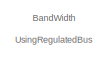
[diagram: root canvas - part 1/5, top center region]
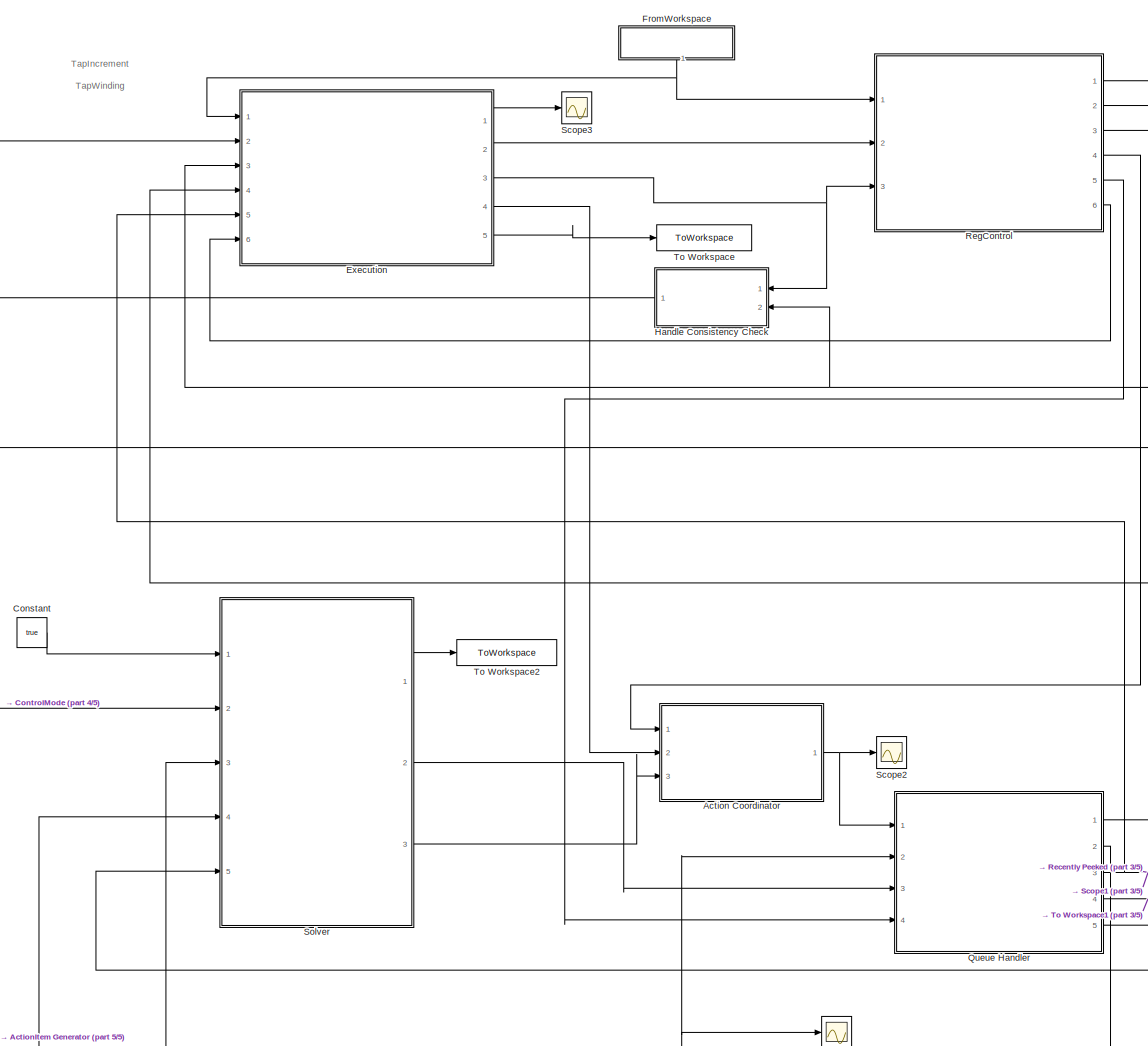
[diagram: root canvas - part 2/5, central region]
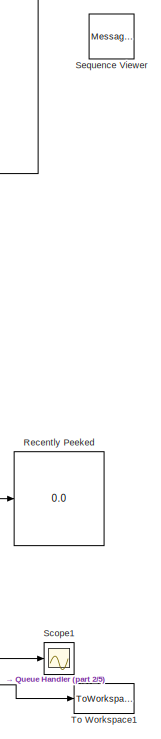
[diagram: root canvas - part 3/5, middle right region]
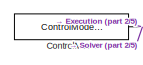
[diagram: root canvas - part 4/5, middle left region]
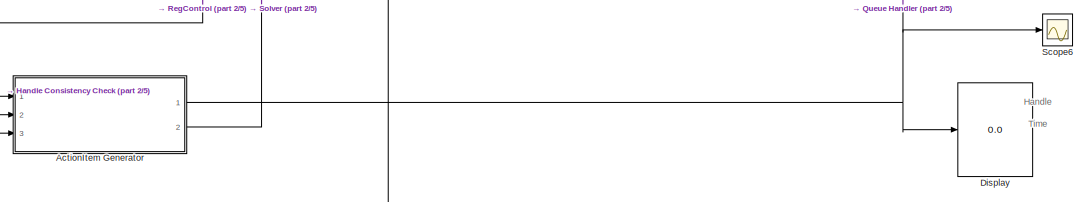
[diagram: root canvas - part 5/5, bottom center region]
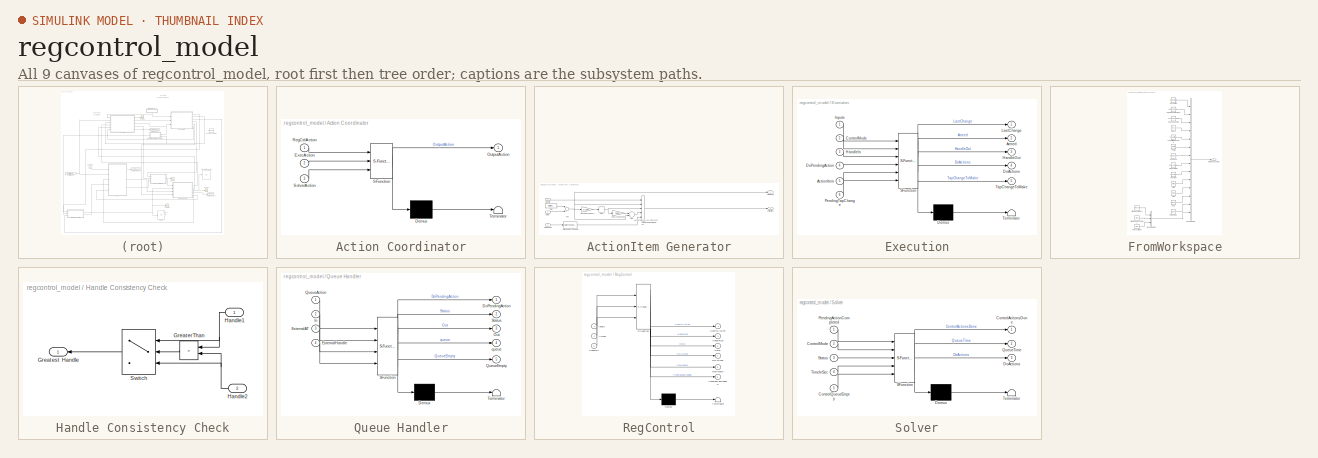
[diagram: thumbnail index - all 9 canvases of the model, root first then tree order]
MODEL regcontrol_model
KIND model
BLOCK [SubSystem] Action Coordinator
  ErrorFcn = Stateflow.Translate.translate
  PermitHierarchicalResolution = ExplicitOnly
  Ports = [3, 1]
  RequestExecContextInheritance = off
  SFBlockType = Chart
  SID = 163
  TreatAsAtomicUnit = on
BLOCK [Demux] Action Coordinator/ Demux 
  Outputs = 1
  Ports = [1, 1]
  SID = 163::90
BLOCK [S-Function] Action Coordinator/ SFunction 
  EnableBusSupport = off
  FunctionName = sf_sfun
  PortCounts = [3 2]
  Ports = [3, 2]
  SFcnIsStateOwnerBlock = off
  SFunctionDeploymentMode = off
  SID = 163::89
  Tag = Stateflow S-Function regcontrol_model 4
BLOCK [Terminator] Action Coordinator/ Terminator 
  SID = 163::91
BLOCK [Inport] Action Coordinator/ExecAction
  IconDisplay = Port number
  Port = 2
  SID = 163::96
BLOCK [Outport] Action Coordinator/OutputAction
  IconDisplay = Port number
  SID = 163::97
BLOCK [Inport] Action Coordinator/RegCtrlAction
  IconDisplay = Port number
  SID = 163::99
BLOCK [Inport] Action Coordinator/SolverAction
  IconDisplay = Port number
  Port = 3
  SID = 163::94
BLOCK [SubSystem] ActionItem Generator
  Ports = [3, 2]
  RequestExecContextInheritance = off
  SID = 138
BLOCK [Inport] ActionItem Generator/ActionCode
  IconDisplay = Port number
  Port = 2
  SID = 139
BLOCK [DataTypeConversion] ActionItem Generator/ActionCodesToDouble
  OutDataTypeStr = double
  RndMeth = Floor
  SID = 169
  SaturateOnIntegerOverflow = off
BLOCK [Outport] ActionItem Generator/ActionItem
  IconDisplay = Port number
  SID = 147
BLOCK [Sum] ActionItem Generator/Add
  InputSameDT = off
  OutDataTypeStr = Inherit: Inherit via internal rule
  Ports = [2, 1]
  SID = 166
  SaturateOnIntegerOverflow = off
BLOCK [Inport] ActionItem Generator/Delay
  IconDisplay = Port number
  Port = 3
  SID = 165
BLOCK [Inport] ActionItem Generator/Handle
  IconDisplay = Port number
  SID = 140
BLOCK [Rounding] ActionItem Generator/Hour
  SID = 141
BLOCK [Gain] ActionItem Generator/HoursToSeconds
  Gain = 3600
  OutDataTypeStr = Inherit: Inherit via internal rule
  ParamDataTypeStr = Inherit: Inherit via internal rule
  SID = 142
  SaturateOnIntegerOverflow = off
BLOCK [Sum] ActionItem Generator/Sec
  InputSameDT = off
  Inputs = -+
  OutDataTypeStr = Inherit: Inherit via internal rule
  Ports = [2, 1]
  SID = 143
  SaturateOnIntegerOverflow = off
BLOCK [Gain] ActionItem Generator/SecondsToHours
  Gain = 1/3600
  OutDataTypeStr = Inherit: Inherit via internal rule
  ParamDataTypeStr = Inherit: Inherit via internal rule
  SID = 144
  SaturateOnIntegerOverflow = off
BLOCK [DigitalClock] ActionItem Generator/Time
  SID = 145
BLOCK [Outport] ActionItem Generator/TimeInSec
  IconDisplay = Port number
  Port = 2
  SID = 148
BLOCK [Concatenate] ActionItem Generator/Vector\nConcatenate1
  NumInputs = 5
  Ports = [5, 1]
  SID = 146
BLOCK [Constant] Constant
  OutDataTypeStr = boolean
  SID = 150
  Value = true
BLOCK [Constant] ControlMode
  OutDataTypeStr = Enum: ControlModes
  SID = 151
  Value = ControlModes.STATIC
BLOCK [Display] Display
  Decimation = 1
  Ports = [1]
  SID = 152
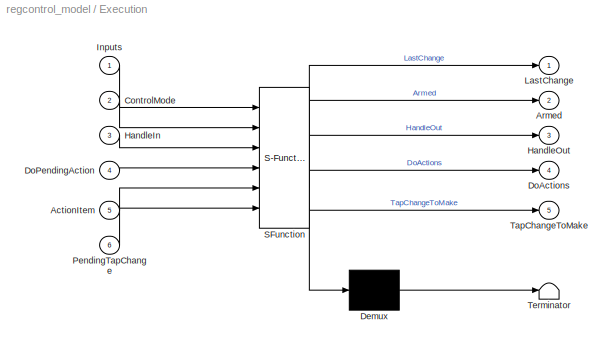
BLOCK [SubSystem] Execution
  ErrorFcn = Stateflow.Translate.translate
  PermitHierarchicalResolution = ExplicitOnly
  Ports = [6, 5]
  RequestExecContextInheritance = off
  SFBlockType = Chart
  SID = 7
  TreatAsAtomicUnit = on
BLOCK [Demux] Execution/ Demux 
  Outputs = 1
  Ports = [1, 1]
  SID = 7::89
BLOCK [S-Function] Execution/ SFunction 
  EnableBusSupport = on
  FunctionName = sf_sfun
  Parameters = 0,false
  PortCounts = [6 6]
  Ports = [6, 6]
  SFcnIsStateOwnerBlock = off
  SFunctionDeploymentMode = off
  SID = 7::88
  Tag = Stateflow S-Function regcontrol_model 1
BLOCK [Terminator] Execution/ Terminator 
  SID = 7::90
BLOCK [Inport] Execution/ActionItem
  IconDisplay = Port number
  Port = 5
  SID = 7::106
BLOCK [Outport] Execution/Armed
  IconDisplay = Port number
  Port = 2
  SID = 7::100
BLOCK [Inport] Execution/ControlMode
  IconDisplay = Port number
  Port = 2
  SID = 7::92
BLOCK [Outport] Execution/DoActions
  IconDisplay = Port number
  Port = 4
  SID = 7::93
BLOCK [Inport] Execution/DoPendingAction
  IconDisplay = Port number
  Port = 4
  SID = 7::103
BLOCK [Inport] Execution/HandleIn
  IconDisplay = Port number
  Port = 3
  SID = 7::94
BLOCK [Outport] Execution/HandleOut
  IconDisplay = Port number
  Port = 3
  SID = 7::95
BLOCK [Inport] Execution/Inputs
  IconDisplay = Port number
  SID = 7::104
BLOCK [Outport] Execution/LastChange
  IconDisplay = Port number
  SID = 7::85
BLOCK [Inport] Execution/PendingTapChange
  IconDisplay = Port number
  Port = 6
  SID = 7::108
BLOCK [Outport] Execution/TapChangeToMake
  IconDisplay = Port number
  Port = 5
  SID = 7::107
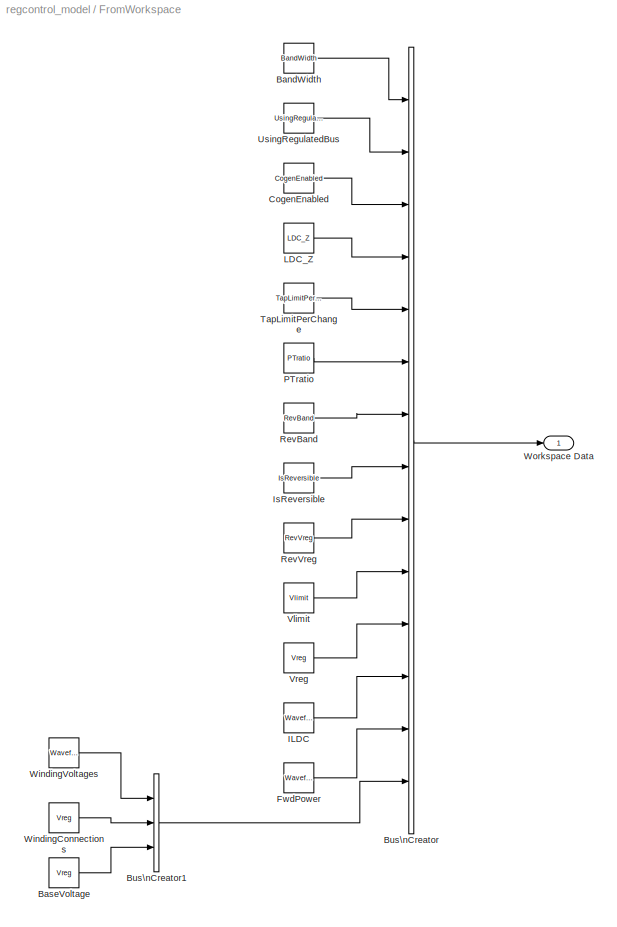
BLOCK [SubSystem] FromWorkspace
  Ports = [0, 1]
  RequestExecContextInheritance = off
  SID = 32
BLOCK [Constant] FromWorkspace/BandWidth
  SID = 31
  Value = BandWidth
BLOCK [Constant] FromWorkspace/BaseVoltage
  SID = 75
  Value = Vreg
BLOCK [BusCreator] FromWorkspace/Bus\nCreator
  DisplayOption = bar
  InheritFromInputs = on
  Inputs = 14
  OutDataTypeStr = Bus: InputsBus
  Ports = [14, 1]
  SID = 16
BLOCK [BusCreator] FromWorkspace/Bus\nCreator1
  DisplayOption = bar
  InheritFromInputs = on
  Inputs = 3
  OutDataTypeStr = Bus: ControlledTransformer
  Ports = [3, 1]
  SID = 70
BLOCK [Constant] FromWorkspace/CogenEnabled
  SID = 47
  Value = CogenEnabled
BLOCK [Reference] FromWorkspace/FwdPower  REF=simulink/Sources/Waveform\nGenerator
  BlockNames = MultiportSwitch_38ca288ec892465
  LockScale = off
  OutDataTypeStr = double
  OutMax = []
  OutMin = []
  Ports = [0, 1]
  RndMeth = Floor
  SID = 61
  SampleTime = 0.1
  SaturateOnIntegerOverflow = off
  SelectedSignal = 1
  Signals = FwdPower
  SourceBlock = simulink/Sources/Waveform\nGenerator
  SourceProductBaseCode = SL
  SourceProductName = Simulink
  SourceType = WaveformGenerator
BLOCK [Reference] FromWorkspace/ILDC  REF=simulink/Sources/Waveform\nGenerator
  BlockNames = MultiportSwitch_5ceb58a2c9c749f
  LockScale = off
  OutDataTypeStr = double
  OutMax = []
  OutMin = []
  Ports = [0, 1]
  RndMeth = Floor
  SID = 60
  SampleTime = 0.1
  SaturateOnIntegerOverflow = off
  SelectedSignal = 1
  Signals = ILDC
  SourceBlock = simulink/Sources/Waveform\nGenerator
  SourceProductBaseCode = SL
  SourceProductName = Simulink
  SourceType = WaveformGenerator
BLOCK [Constant] FromWorkspace/IsReversible
  SID = 58
  Value = IsReversible
BLOCK [Constant] FromWorkspace/LDC_Z
  SID = 48
  Value = LDC_Z
BLOCK [Constant] FromWorkspace/PTratio
  SID = 56
  Value = PTratio
BLOCK [Constant] FromWorkspace/RevBand
  SID = 57
  Value = RevBand
BLOCK [Constant] FromWorkspace/RevVreg
  SID = 53
  Value = RevVreg
BLOCK [Constant] FromWorkspace/TapLimitPerChange
  SID = 55
  Value = TapLimitPerChange
BLOCK [Constant] FromWorkspace/UsingRegulatedBus
  SID = 46
  Value = UsingRegulatedBus
BLOCK [Constant] FromWorkspace/Vlimit
  SID = 54
  Value = Vlimit
BLOCK [Constant] FromWorkspace/Vreg
  SID = 59
  Value = Vreg
BLOCK [Constant] FromWorkspace/WindingConnections
  SID = 71
  Value = Vreg
BLOCK [Reference] FromWorkspace/WindingVoltages  REF=simulink/Sources/Waveform\nGenerator
  BlockNames = MultiportSwitch_38ca288ec892465
  LockScale = off
  OutDataTypeStr = double
  OutMax = []
  OutMin = []
  Ports = [0, 1]
  RndMeth = Floor
  SID = 74
  SampleTime = 0.1
  SaturateOnIntegerOverflow = off
  SelectedSignal = 1
  Signals = FwdPower
  SourceBlock = simulink/Sources/Waveform\nGenerator
  SourceProductBaseCode = SL
  SourceProductName = Simulink
  SourceType = WaveformGenerator
BLOCK [Outport] FromWorkspace/Workspace Data
  IconDisplay = Port number
  SID = 45
BLOCK [SubSystem] Handle Consistency Check
  Ports = [2, 1]
  RequestExecContextInheritance = off
  SID = 177
BLOCK [RelationalOperator] Handle Consistency Check/GreaterThan
  InputSameDT = off
  Operator = >
  Ports = [2, 1]
  RndMeth = Simplest
  SID = 171
BLOCK [Outport] Handle Consistency Check/Greatest Handle
  IconDisplay = Port number
  SID = 180
BLOCK [Inport] Handle Consistency Check/Handle1
  IconDisplay = Port number
  SID = 178
BLOCK [Inport] Handle Consistency Check/Handle2
  IconDisplay = Port number
  Port = 2
  SID = 179
BLOCK [Switch] Handle Consistency Check/Switch
  Criteria = u2 ~= 0
  InputSameDT = off
  SID = 172
  SaturateOnIntegerOverflow = off
BLOCK [SubSystem] Queue Handler
  ErrorFcn = Stateflow.Translate.translate
  PermitHierarchicalResolution = ExplicitOnly
  Ports = [4, 5]
  RequestExecContextInheritance = off
  SFBlockType = Chart
  SID = 154
  TreatAsAtomicUnit = on
BLOCK [Demux] Queue Handler/ Demux 
  Outputs = 1
  Ports = [1, 1]
  SID = 154::90
BLOCK [S-Function] Queue Handler/ SFunction 
  EnableBusSupport = on
  FunctionName = sf_sfun
  InputPortMessageModes = m,n,n,n
  OutputPortMessageModes = n,m,n,n,n,n
  Parameters = 0,1,2,3,4,5,false,false;,true
  PortCounts = [4 6]
  Ports = [4, 6]
  SFcnIsStateOwnerBlock = off
  SFunctionDeploymentMode = off
  SID = 154::89
  Tag = Stateflow S-Function regcontrol_model 5
BLOCK [Terminator] Queue Handler/ Terminator 
  SID = 154::96
BLOCK [Outport] Queue Handler/DoPendingAction
  IconDisplay = Port number
  SID = 154::119
BLOCK [Inport] Queue Handler/ExternalAT
  IconDisplay = Port number
  Port = 3
  SID = 154::115
BLOCK [Inport] Queue Handler/ExternalHandle
  IconDisplay = Port number
  Port = 4
  SID = 154::118
BLOCK [Inport] Queue Handler/In
  IconDisplay = Port number
  Port = 2
  SID = 154::112
BLOCK [Outport] Queue Handler/Out
  IconDisplay = Port number
  Port = 3
  SID = 154::109
BLOCK [Inport] Queue Handler/QueueAction
  IconDisplay = Port number
  SID = 154::98
BLOCK [Outport] Queue Handler/QueueEmpty
  IconDisplay = Port number
  Port = 5
  SID = 154::117
BLOCK [Outport] Queue Handler/Status
  IconDisplay = Port number
  Port = 2
  SID = 154::105
BLOCK [Outport] Queue Handler/queue
  IconDisplay = Port number
  Port = 4
  SID = 154::111
BLOCK [Display] Recently Peeked
  Decimation = 1
  Ports = [1]
  SID = 155
BLOCK [SubSystem] RegControl
  ErrorFcn = Stateflow.Translate.translate
  PermitHierarchicalResolution = ExplicitOnly
  Ports = [3, 6]
  RequestExecContextInheritance = off
  SFBlockType = Chart
  SID = 4
  ShowPortLabels = SignalName
  TreatAsAtomicUnit = on
BLOCK [Demux] RegControl/ Demux 
  Outputs = 1
  Ports = [1, 1]
  SID = 4::220
BLOCK [S-Function] RegControl/ SFunction 
  EnableBusSupport = on
  FunctionName = sf_sfun
  Parameters = 0,1,1.0e-12,120,16,3,60,BaseVoltage,false
  PortCounts = [3 7]
  Ports = [3, 7]
  SFcnIsStateOwnerBlock = off
  SFunctionDeploymentMode = off
  SID = 4::219
  Tag = Stateflow S-Function regcontrol_model 3
BLOCK [Terminator] RegControl/ Terminator 
  SID = 4::221
BLOCK [Inport] RegControl/Armed
  IconDisplay = Port number
  Port = 2
  SID = 4::237
BLOCK [Outport] RegControl/ControlAction
  IconDisplay = Port number
  SID = 4::236
BLOCK [Outport] RegControl/Delay
  IconDisplay = Port number
  Port = 3
  SID = 4::239
BLOCK [Outport] RegControl/DoActions
  IconDisplay = Port number
  Port = 4
  SID = 4::240
BLOCK [Inport] RegControl/HandleIn
  IconDisplay = Port number
  Port = 3
  SID = 4::242
BLOCK [Outport] RegControl/HandleOut
  IconDisplay = Port number
  Port = 2
  SID = 4::238
BLOCK [Inport] RegControl/Inputs
  IconDisplay = Port number
  SID = 4::235
BLOCK [Outport] RegControl/PendingTapChange
  IconDisplay = Port number
  Port = 6
  SID = 4::243
BLOCK [Outport] RegControl/RevHandle
  IconDisplay = Port number
  Port = 5
  SID = 4::241
BLOCK [Scope] Scope1
  Floating = off
  NumInputPorts = 1
  Ports = [1]
  SID = 156
  ScopeSpecificationString = Simulink.scopes.TimeScopeBlockCfg('CurrentConfiguration', extmgr.ConfigurationSet(extmgr.Configuration('Core','General UI',true),extmgr.Configuration('Core','Source UI',true),extmgr.Configuration('Sources','WiredSimulink',true,'DataLoggingVariableName','ScopeData1'),extmgr.Configuration('Visuals','Time Domain',true,'SerializedDisplays',{struct('MinYLimReal','-0.5','MaxYLimReal','4.5','YLabelReal',...<+1470ch>
BLOCK [Scope] Scope2
  Floating = off
  NumInputPorts = 1
  Ports = [1]
  SID = 157
  ScopeSpecificationString = Simulink.scopes.TimeScopeBlockCfg('CurrentConfiguration', extmgr.ConfigurationSet(extmgr.Configuration('Core','General UI',true),extmgr.Configuration('Core','Source UI',true),extmgr.Configuration('Sources','WiredSimulink',true,'DataLoggingVariableName','ScopeData2'),extmgr.Configuration('Visuals','Time Domain',true,'SerializedDisplays',{struct('MinYLimReal','-0.75','MaxYLimReal','6.75','YLabelReal...<+1414ch>
BLOCK [Scope] Scope3
  Floating = off
  NumInputPorts = 1
  Ports = [1]
  SID = 174
  ScopeSpecificationString = Simulink.scopes.TimeScopeBlockCfg('CurrentConfiguration', extmgr.ConfigurationSet(extmgr.Configuration('Core','General UI',true),extmgr.Configuration('Core','Source UI',true),extmgr.Configuration('Sources','WiredSimulink',true,'DataLoggingVariableName','ScopeData1'),extmgr.Configuration('Visuals','Time Domain',true,'SerializedDisplays',{struct('MinYLimReal','-0.75','MaxYLimReal','6.75','YLabelReal...<+1414ch>
BLOCK [Scope] Scope6
  Floating = off
  NumInputPorts = 1
  Ports = [1]
  SID = 158
  ScopeSpecificationString = Simulink.scopes.TimeScopeBlockCfg('CurrentConfiguration', extmgr.ConfigurationSet(extmgr.Configuration('Core','General UI',true),extmgr.Configuration('Core','Source UI',true),extmgr.Configuration('Sources','WiredSimulink',true,'DataLoggingVariableName','ScopeData3'),extmgr.Configuration('Visuals','Time Domain',true,'SerializedDisplays',{struct('MinYLimReal','-1.25','MaxYLimReal','11.25','YLabelRea...<+1418ch>
BLOCK [MessageViewer] Sequence Viewer
  SID = 167
BLOCK [SubSystem] Solver
  ErrorFcn = Stateflow.Translate.translate
  PermitHierarchicalResolution = ExplicitOnly
  Ports = [5, 3]
  RequestExecContextInheritance = off
  SFBlockType = Chart
  SID = 159
  TreatAsAtomicUnit = on
BLOCK [Demux] Solver/ Demux 
  Outputs = 1
  Ports = [1, 1]
  SID = 159::90
BLOCK [S-Function] Solver/ SFunction 
  EnableBusSupport = on
  FunctionName = sf_sfun
  InputPortMessageModes = n,n,n,m,n
  OutputPortMessageModes = n,n,n,m
  Parameters = false
  PortCounts = [5 4]
  Ports = [5, 4]
  SFcnIsStateOwnerBlock = off
  SFunctionDeploymentMode = off
  SID = 159::89
  Tag = Stateflow S-Function regcontrol_model 2
BLOCK [Terminator] Solver/ Terminator 
  SID = 159::91
BLOCK [Outport] Solver/ControlActionsDone
  IconDisplay = Port number
  SID = 159::94
BLOCK [Inport] Solver/ControlMode
  IconDisplay = Port number
  Port = 2
  SID = 159::100
BLOCK [Inport] Solver/ControlQueueEmpty
  IconDisplay = Port number
  Port = 5
  SID = 159::106
BLOCK [Outport] Solver/DoActions
  IconDisplay = Port number
  Port = 3
  SID = 159::96
BLOCK [Inport] Solver/PendingActionCompleted
  IconDisplay = Port number
  SID = 159::99
BLOCK [Outport] Solver/QueueTime
  IconDisplay = Port number
  Port = 2
  SID = 159::95
BLOCK [Inport] Solver/Status
  IconDisplay = Port number
  Port = 3
  SID = 159::103
BLOCK [Inport] Solver/TimeInSec
  IconDisplay = Port number
  Port = 4
  SID = 159::104
BLOCK [ToWorkspace] To Workspace
  FixptAsFi = on
  MaxDataPoints = inf
  Ports = [1]
  SID = 173
  SampleTime = -1
  Save2DSignal = 3-D array (concatenate along third dimension)
  SaveFormat = Timeseries
  VariableName = TapChangeToMake
BLOCK [ToWorkspace] To Workspace1
  FixptAsFi = on
  MaxDataPoints = inf
  Ports = [1]
  SID = 160
  SampleTime = -1
  Save2DSignal = 3-D array (concatenate along third dimension)
  SaveFormat = Structure With Time
  VariableName = queueAtTime
BLOCK [ToWorkspace] To Workspace2
  FixptAsFi = on
  MaxDataPoints = inf
  Ports = [1]
  SID = 161
  SampleTime = -1
  Save2DSignal = 3-D array (concatenate along third dimension)
  SaveFormat = Timeseries
  VariableName = ControlActionsDone
ANNOTATION (root): \n \n BandWidth \n UsingRegulatedBus \n CogenEnabled \n LDC_Z \n TapLimitPerChange \n PTratio \n RevBand \n IsReversible \n RevVreg \n Vlimit \n Vreg \n ILDC \n FwdPower
ANNOTATION (root): \n \n Handle \n Time \n Hour \n Sec \n ActionCode
ANNOTATION (root): \n \n TapIncrement \n TapWinding \n TapDelay \n CogenEnabled
ANNOTATION ActionItem Generator: \n \n [Handle Time Hour Sec ActionCode]'
LINE Action Coordinator/ Demux :1 -> Action Coordinator/ Terminator :1
LINE Action Coordinator/ SFunction :1 -> Action Coordinator/ Demux :1
LINE Action Coordinator/ SFunction :2 -> Action Coordinator/OutputAction:1
LINE Action Coordinator/ExecAction:1 -> Action Coordinator/ SFunction :2
LINE Action Coordinator/RegCtrlAction:1 -> Action Coordinator/ SFunction :1
LINE Action Coordinator/SolverAction:1 -> Action Coordinator/ SFunction :3
NET Action Coordinator:1 -> Queue Handler:1, Scope2:1
LINE ActionItem Generator/ActionCode:1 -> ActionItem Generator/ActionCodesToDouble:1
LINE ActionItem Generator/ActionCodesToDouble:1 -> ActionItem Generator/Vector\nConcatenate1:5
NET ActionItem Generator/Add:1 -> ActionItem Generator/Sec:2, ActionItem Generator/SecondsToHours:1, ActionItem Generator/TimeInSec:1, ActionItem Generator/Vector\nConcatenate1:2
LINE ActionItem Generator/Delay:1 -> ActionItem Generator/Add:2
LINE ActionItem Generator/Handle:1 -> ActionItem Generator/Vector\nConcatenate1:1
NET ActionItem Generator/Hour:1 -> ActionItem Generator/HoursToSeconds:1, ActionItem Generator/Vector\nConcatenate1:3
LINE ActionItem Generator/HoursToSeconds:1 -> ActionItem Generator/Sec:1
LINE ActionItem Generator/Sec:1 -> ActionItem Generator/Vector\nConcatenate1:4
LINE ActionItem Generator/SecondsToHours:1 -> ActionItem Generator/Hour:1
LINE ActionItem Generator/Time:1 -> ActionItem Generator/Add:1
LINE ActionItem Generator/Vector\nConcatenate1:1 -> ActionItem Generator/ActionItem:1
NET ActionItem Generator:1 -> Display:1, Queue Handler:2, Scope6:1
LINE ActionItem Generator:2 -> Solver:4
LINE Constant:1 -> Solver:1
NET ControlMode:1 -> Execution:2, Solver:2
LINE Execution/ Demux :1 -> Execution/ Terminator :1
LINE Execution/ SFunction :1 -> Execution/ Demux :1
LINE Execution/ SFunction :2 -> Execution/LastChange:1
LINE Execution/ SFunction :3 -> Execution/Armed:1
LINE Execution/ SFunction :4 -> Execution/HandleOut:1
LINE Execution/ SFunction :5 -> Execution/DoActions:1
LINE Execution/ SFunction :6 -> Execution/TapChangeToMake:1
LINE Execution/ActionItem:1 -> Execution/ SFunction :5
LINE Execution/ControlMode:1 -> Execution/ SFunction :2
LINE Execution/DoPendingAction:1 -> Execution/ SFunction :4
LINE Execution/HandleIn:1 -> Execution/ SFunction :3
LINE Execution/Inputs:1 -> Execution/ SFunction :1
LINE Execution/PendingTapChange:1 -> Execution/ SFunction :6
LINE Execution:1 -> Scope3:1
LINE Execution:2 -> RegControl:2
NET Execution:3 -> Handle Consistency Check:1, RegControl:3
LINE Execution:4 -> Action Coordinator:2
LINE Execution:5 -> To Workspace:1
LINE FromWorkspace/BandWidth:1 -> FromWorkspace/Bus\nCreator:1
LINE FromWorkspace/BaseVoltage:1 -> FromWorkspace/Bus\nCreator1:3
LINE FromWorkspace/Bus\nCreator1:1 -> FromWorkspace/Bus\nCreator:14
LINE FromWorkspace/Bus\nCreator:1 -> FromWorkspace/Workspace Data:1
LINE FromWorkspace/CogenEnabled:1 -> FromWorkspace/Bus\nCreator:3
LINE FromWorkspace/FwdPower:1 -> FromWorkspace/Bus\nCreator:13
LINE FromWorkspace/ILDC:1 -> FromWorkspace/Bus\nCreator:12
LINE FromWorkspace/IsReversible:1 -> FromWorkspace/Bus\nCreator:8
LINE FromWorkspace/LDC_Z:1 -> FromWorkspace/Bus\nCreator:4
LINE FromWorkspace/PTratio:1 -> FromWorkspace/Bus\nCreator:6
LINE FromWorkspace/RevBand:1 -> FromWorkspace/Bus\nCreator:7
LINE FromWorkspace/RevVreg:1 -> FromWorkspace/Bus\nCreator:9
LINE FromWorkspace/TapLimitPerChange:1 -> FromWorkspace/Bus\nCreator:5
LINE FromWorkspace/UsingRegulatedBus:1 -> FromWorkspace/Bus\nCreator:2
LINE FromWorkspace/Vlimit:1 -> FromWorkspace/Bus\nCreator:10
LINE FromWorkspace/Vreg:1 -> FromWorkspace/Bus\nCreator:11
LINE FromWorkspace/WindingConnections:1 -> FromWorkspace/Bus\nCreator1:2
LINE FromWorkspace/WindingVoltages:1 -> FromWorkspace/Bus\nCreator1:1
NET FromWorkspace:1 -> Execution:1, RegControl:1
LINE Handle Consistency Check/GreaterThan:1 -> Handle Consistency Check/Switch:2
NET Handle Consistency Check/Handle1:1 -> Handle Consistency Check/GreaterThan:1, Handle Consistency Check/Switch:1
NET Handle Consistency Check/Handle2:1 -> Handle Consistency Check/GreaterThan:2, Handle Consistency Check/Switch:3
LINE Handle Consistency Check/Switch:1 -> Handle Consistency Check/Greatest Handle:1
LINE Handle Consistency Check:1 -> ActionItem Generator:1
LINE Queue Handler/ Demux :1 -> Queue Handler/ Terminator :1
LINE Queue Handler/ SFunction :1 -> Queue Handler/ Demux :1
LINE Queue Handler/ SFunction :2 -> Queue Handler/DoPendingAction:1
LINE Queue Handler/ SFunction :3 -> Queue Handler/Status:1
LINE Queue Handler/ SFunction :4 -> Queue Handler/Out:1
LINE Queue Handler/ SFunction :5 -> Queue Handler/queue:1
LINE Queue Handler/ SFunction :6 -> Queue Handler/QueueEmpty:1
LINE Queue Handler/ExternalAT:1 -> Queue Handler/ SFunction :3
LINE Queue Handler/ExternalHandle:1 -> Queue Handler/ SFunction :4
LINE Queue Handler/In:1 -> Queue Handler/ SFunction :2
LINE Queue Handler/QueueAction:1 -> Queue Handler/ SFunction :1
LINE Queue Handler:1 -> Execution:4
LINE Queue Handler:2 -> Solver:3
NET Queue Handler:3 -> Execution:5, Recently Peeked:1, Scope1:1
LINE Queue Handler:4 -> To Workspace1:1
LINE Queue Handler:5 -> Solver:5
LINE RegControl/ Demux :1 -> RegControl/ Terminator :1
LINE RegControl/ SFunction :1 -> RegControl/ Demux :1
LINE RegControl/ SFunction :2 -> RegControl/ControlAction:1
LINE RegControl/ SFunction :3 -> RegControl/HandleOut:1
LINE RegControl/ SFunction :4 -> RegControl/Delay:1
LINE RegControl/ SFunction :5 -> RegControl/DoActions:1
LINE RegControl/ SFunction :6 -> RegControl/RevHandle:1
LINE RegControl/ SFunction :7 -> RegControl/PendingTapChange:1
LINE RegControl/Armed:1 -> RegControl/ SFunction :2
LINE RegControl/HandleIn:1 -> RegControl/ SFunction :3
LINE RegControl/Inputs:1 -> RegControl/ SFunction :1
LINE RegControl:1 -> ActionItem Generator:2
NET RegControl:2 -> Execution:3, Handle Consistency Check:2
LINE RegControl:3 -> ActionItem Generator:3
LINE RegControl:4 -> Action Coordinator:1
LINE RegControl:5 -> Queue Handler:4
LINE RegControl:6 -> Execution:6
LINE Solver/ Demux :1 -> Solver/ Terminator :1
LINE Solver/ SFunction :1 -> Solver/ Demux :1
LINE Solver/ SFunction :2 -> Solver/ControlActionsDone:1
LINE Solver/ SFunction :3 -> Solver/QueueTime:1
LINE Solver/ SFunction :4 -> Solver/DoActions:1
LINE Solver/ControlMode:1 -> Solver/ SFunction :2
LINE Solver/ControlQueueEmpty:1 -> Solver/ SFunction :5
LINE Solver/PendingActionCompleted:1 -> Solver/ SFunction :1
LINE Solver/Status:1 -> Solver/ SFunction :3
LINE Solver/TimeInSec:1 -> Solver/ SFunction :4
LINE Solver:1 -> To Workspace2:1
LINE Solver:2 -> Queue Handler:3
LINE Solver:3 -> Action Coordinator:3
note: NET lines group one-source signal fan-out (src -> all destinations, sorted); 1:1 wires keep LINE
CHART Execution states=19 transitions=112
  STATE_LABEL 'Push(CodeVal, DelayVal)'
  STATE_LABEL 'Finished\\nen: EXIT_TAPCHANGE = true;'
  STATE_LABEL 'Finished'
  STATE_LABEL 'AssignInputsToLocals'
  STATE_LABEL 'ChangeToMake = AtLeastOneTap(ProposedChange, Increment)'
  STATE_LABEL 'Reversing'
  STATE_LABEL 'FlipReverse'
  STATE_LABEL '[ChangeToMake, NewProposedChange] = OneInDirectionOf(ProposedChange, Increment)'
  STATE_LABEL 'Called in STATIC mode\\nChanges 70% of the way but at least one tap, subject to maximum allowable tap change'
  STATE_LABEL 'FlipCogen'
  STATE_LABEL 'Computes the amount of one tap change in the direction of the pending tapchange\\nAutomatically decrements the proposed change by that amount'
  STATE_LABEL 'Finished\\nen: EXIT_REVERSE = true;'
  STATE_LABEL 'ResetTransitionFlags'
  STATE_LABEL 'ControlFlow'
  STATE_LABEL 'MakingTapChange'
  STATE_LABEL 'StaticTapChange'
  STATE_LABEL 'EventDrivenTapChange'
  STATE_LABEL 'TimeDrivenTapChange'
  STATE_LABEL 'MultiRateTapChange'
CHART Solver states=6 transitions=46
  STATE_LABEL 'ControlFlow'
  STATE_LABEL '<!DOCTYPE HTML PUBLIC \\"-//W3C//DTD HTML 4.0//EN\\" \\"http://www.w3.org/TR/REC-html40/strict.dtd\\">\\n<html><head><meta name=\\"qrichtext\\" content=\\"1\\" /><style type=\\"text/css\\">\\np, li { white-space: pre-wrap; }\\n</style></head><body style=\\" font-family:\'Helvetica\'; font-size:12px; font-weight:400; font-style:normal;\\">\\n<p style=\\" margin-top:0px; margin-bottom:0px; margin-left:0px; margin-righ...<+581ch>'
  STATE_LABEL '<!DOCTYPE HTML PUBLIC \\"-//W3C//DTD HTML 4.0//EN\\" \\"http://www.w3.org/TR/REC-html40/strict.dtd\\">\\n<html><head><meta name=\\"qrichtext\\" content=\\"1\\" /><style type=\\"text/css\\">\\np, li { white-space: pre-wrap; }\\n</style></head><body style=\\" font-family:\'Helvetica\'; font-size:12px; font-weight:400; font-style:normal;\\">\\n<p style=\\" margin-top:0px; margin-bottom:0px; margin-left:0px; margin-righ...<+591ch>'
  STATE_LABEL '<!DOCTYPE HTML PUBLIC \\"-//W3C//DTD HTML 4.0//EN\\" \\"http://www.w3.org/TR/REC-html40/strict.dtd\\">\\n<html><head><meta name=\\"qrichtext\\" content=\\"1\\" /><style type=\\"text/css\\">\\np, li { white-space: pre-wrap; }\\n</style></head><body style=\\" font-family:\'Helvetica\'; font-size:12px; font-weight:400; font-style:normal;\\">\\n<p style=\\" margin-top:0px; margin-bottom:0px; margin-left:0px; margin-righ...<+583ch>'
  STATE_LABEL '<!DOCTYPE HTML PUBLIC \\"-//W3C//DTD HTML 4.0//EN\\" \\"http://www.w3.org/TR/REC-html40/strict.dtd\\">\\n<html><head><meta name=\\"qrichtext\\" content=\\"1\\" /><style type=\\"text/css\\">\\np, li { white-space: pre-wrap; }\\n</style></head><body style=\\" font-family:\'Helvetica\'; font-size:12px; font-weight:400; font-style:normal;\\">\\n<p style=\\" margin-top:0px; margin-bottom:0px; margin-left:0px; margin-righ...<+583ch>'
  STATE_LABEL 'QueueEmptyCase\\nen: LocalControlQueueEmpty = true;'
CHART RegControl states=37 transitions=219
  STATE_LABEL 'ControlFlow'
  STATE_LABEL 'DetermineReversePendingLookingForward'
  STATE_LABEL 'CorrectFalseReversePending'
  STATE_LABEL 'CorrectTrueReversePending'
  STATE_LABEL 'Finished\\nen: GET_VOLTAGE = true;'
  STATE_LABEL 'DetermineReversePendingLookingReverseOrCogen'
  STATE_LABEL 'CorrectFalseReversePending'
  STATE_LABEL 'CorrectTrueReversePending'
  STATE_LABEL 'Finished\\nen: REV_NEUTRAL = true;'
  STATE_LABEL 'ReverseNeutralCase'
  STATE_LABEL 'Finished\\nsend(GET_VOLTAGE);'
  STATE_LABEL 'Exiting\\nen: EXIT = true;'
  STATE_LABEL 'GetVoltage'
  STATE_LABEL 'Finished\\nen: DETERMINE_VLOCALBUS = true;'
  STATE_LABEL 'DetermineVlocalbus'
  STATE_LABEL 'Finished\\nen: GET_VOLTAGEWLDC = true;'
  STATE_LABEL 'GetVoltageWithLDC'
  STATE_LABEL 'RX_LDCmode'
  STATE_LABEL 'Z_LDCmode'
  STATE_LABEL 'Finished\\nen: GET_TEST_VALUES = true;'
  STATE_LABEL 'GetTestValues'
  STATE_LABEL 'Finished\\nen:\\nDETERMINE_TAP_CHANGE = true;'
  STATE_LABEL 'DetermineTapChangeIsNeeded'
  STATE_LABEL 'Finished\\nen:\\nMAKE_TAP_CHANGE = true;'
  STATE_LABEL 'MakeTapChange'
  STATE_LABEL 'GetVboostFromVlimit'
  STATE_LABEL 'TapChangeUp'
  STATE_LABEL 'TapChangeDown'
  STATE_LABEL 'Finished\\nen: FINISHED = true;'
  STATE_LABEL 'Finished'
  STATE_LABEL 'h = Push(CodeVal, DelayVal)'
  STATE_LABEL 'AssignInputsToLocals'
  STATE_LABEL 'ResetTransitionFlags'
  STATE_LABEL 'WindingVoltages = GetWindingVoltages(Transformer, IndicatedWinding)'
  STATE_LABEL 'vt = ComputeVTerminal'
  STATE_LABEL 'Result = GetControlVoltage'
  STATE_LABEL 'Result = ComputeTimeDelay(Vavg)'
CHART Action Coordinator states=4 transitions=7
  STATE_LABEL 'Asleep'
  STATE_LABEL 'SendingRegCtrlAction\\nen:OutputAction.data = ...\\n    RegCtrlAction.data;\\nsend(OutputAction);'
  STATE_LABEL 'SendingSolverAction\\nen:OutputAction.data = ...\\n    SolverAction.data;\\nsend(SolverAction);'
  STATE_LABEL 'SendingExecAction\\nen:OutputAction.data = ...\\n    ExecAction.data;\\nsend(OutputAction);'
CHART Queue Handler states=27 transitions=98
  STATE_LABEL 'Executive'
  STATE_LABEL 'Asleep\\nex: Status.data = Statuses.READY; % reset status\\n INTERNAL_DONE = false;\\n EXECUTIVE_DONE = false;'
  STATE_LABEL 'DoNearestActions'
  STATE_LABEL 'WaitOnPeek\\nen: send(QUEUE_PEEK, Internal);'
  STATE_LABEL 'WaitOnPop\\nen: send(QUEUE_POP, Internal);'
  STATE_LABEL 'ErrorNoItems\\nen: Status.data = ...\\n     Statuses.ERROR;\\n send(Status);'
  STATE_LABEL 'DoAllActions'
  STATE_LABEL 'WaitOnPop\\nen: send(QUEUE_POP, Internal);'
  STATE_LABEL 'ErrorNoItems\\nen: Status.data = ...\\n     Statuses.ERROR;\\n send(Status);'
  STATE_LABEL 'Pushing\\nen: send(QUEUE_PUSH, Internal);'
  STATE_LABEL 'DeletingByHandle\\nen: send(QUEUE_DELETE, Internal);'
  STATE_LABEL 'Peeking\\nen: send(QUEUE_PEEK, Internal);'
  STATE_LABEL 'Popping\\nen: send(QUEUE_POP, Internal);'
  STATE_LABEL 'ReadyAgain\\nStatus.data = Statuses.READY;\\nsend(Status);'
  STATE_LABEL 'Internal'
  STATE_LABEL 'Asleep'
  STATE_LABEL 'Popping\\n'
  STATE_LABEL 'DeletingByHandle\\n'
  STATE_LABEL 'Pushing'
  STATE_LABEL 'Peeking'
  STATE_LABEL 'QF % Queue Fields'
  STATE_LABEL 'h = GetElemHandle(depth)'
  STATE_LABEL 'qs = GetQueueSize'
  STATE_LABEL 'et = GetElemTime(depth)'
  STATE_LABEL 'elem = GetElem(depth)'
  STATE_LABEL 'ExpandQueue(depth)'
  STATE_LABEL 'ReduceQueue(depth)'
